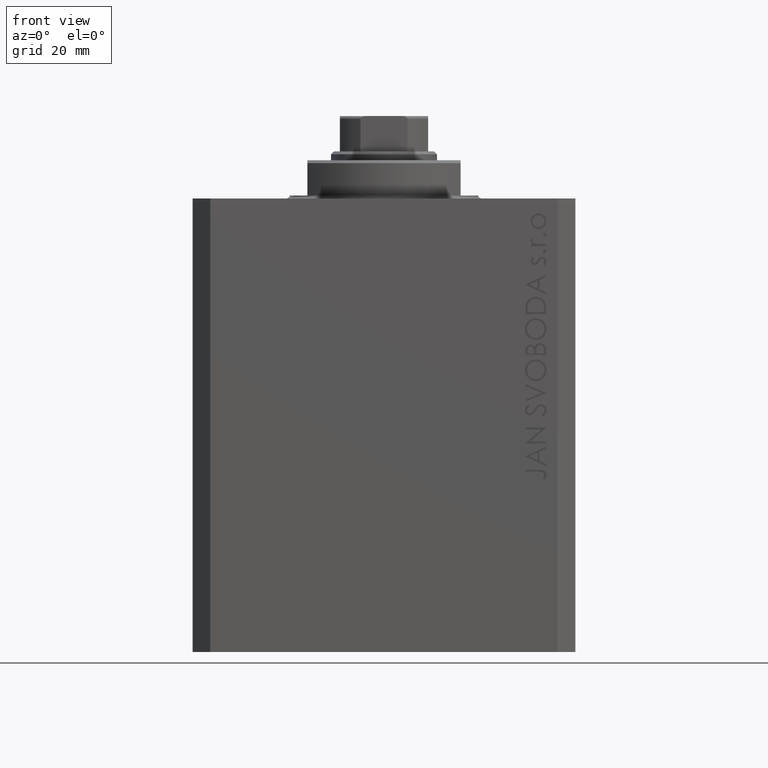
[diagram: clean part render]
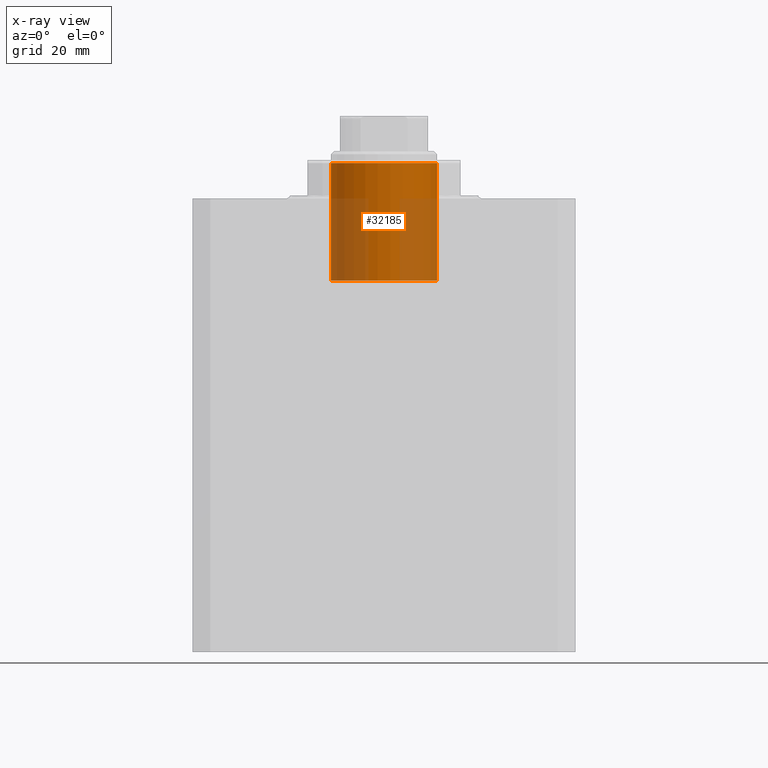
[diagram: x-ray — body ghosted, one internal face saturated and labeled with its STEP entity id]
A machine part, front view, then the same camera in x-ray: the body is ghosted and one INTERNAL B-rep face — a face not visible from any outside direction — is saturated and labeled: STEP entity #32185.
In plain terms, the highlighted cylindrical surface (partial cylindrical patch) has radius 9 mm, axis along (0, -0, 1).
Its self-contained STEP definition (entity closure, byte-faithful):
#677 = AXIS2_PLACEMENT_3D ( 'NONE', #23415, #34451, #4932 ) ;
#1191 = DIRECTION ( 'NONE',  ( 0.000000000000000000, 0.000000000000000000, -1.000000000000000000 ) ) ;
#1684 = CYLINDRICAL_SURFACE ( 'NONE', #7118, 9.000000000000000000 ) ;
#3570 = ORIENTED_EDGE ( 'NONE', *, *, #31695, .T. ) ;
#3583 = EDGE_LOOP ( 'NONE', ( #42538, #3570, #30883, #42261 ) ) ;
#3878 = EDGE_CURVE ( 'NONE', #10261, #14489, #27518, .T. ) ;
#4932 = DIRECTION ( 'NONE',  ( -1.000000000000000000, 0.000000000000000000, 0.000000000000000000 ) ) ;
#7012 = DIRECTION ( 'NONE',  ( -0.000000000000000000, -0.000000000000000000, -1.000000000000000000 ) ) ;
#7118 = AXIS2_PLACEMENT_3D ( 'NONE', #42703, #38870, #31198 ) ;
#7186 = EDGE_CURVE ( 'NONE', #9735, #23212, #28922, .T. ) ;
#9735 = VERTEX_POINT ( 'NONE', #17208 ) ;
#10261 = VERTEX_POINT ( 'NONE', #45424 ) ;
#12405 = CARTESIAN_POINT ( 'NONE',  ( -9.000000000000000000, 0.000000000000000000, 14.00000000000000178 ) ) ;
#14489 = VERTEX_POINT ( 'NONE', #41833 ) ;
#15667 = DIRECTION ( 'NONE',  ( -0.000000000000000000, -0.000000000000000000, -1.000000000000000000 ) ) ;
#15826 = DIRECTION ( 'NONE',  ( -1.000000000000000000, 0.000000000000000000, 0.000000000000000000 ) ) ;
#17208 = CARTESIAN_POINT ( 'NONE',  ( 9.000000000000000000, 1.102182119232617714E-15, 14.00000000000000178 ) ) ;
#23212 = VERTEX_POINT ( 'NONE', #12405 ) ;
#23415 = CARTESIAN_POINT ( 'NONE',  ( 0.000000000000000000, 0.000000000000000000, -5.999999999999987566 ) ) ;
#23514 = CARTESIAN_POINT ( 'NONE',  ( 0.000000000000000000, 0.000000000000000000, 14.00000000000000178 ) ) ;
#27518 = CIRCLE ( 'NONE', #677, 9.000000000000000000 ) ;
#28922 = CIRCLE ( 'NONE', #39647, 9.000000000000000000 ) ;
#29602 = LINE ( 'NONE', #34380, #39310 ) ;
#30883 = ORIENTED_EDGE ( 'NONE', *, *, #3878, .T. ) ;
#31198 = DIRECTION ( 'NONE',  ( -1.000000000000000000, 0.000000000000000000, 0.000000000000000000 ) ) ;
#31679 = FACE_OUTER_BOUND ( 'NONE', #3583, .T. ) ;
#31695 = EDGE_CURVE ( 'NONE', #9735, #10261, #29602, .T. ) ;
#32185 = ADVANCED_FACE ( 'NONE', ( #31679 ), #1684, .F. ) ;
#34339 = EDGE_CURVE ( 'NONE', #23212, #14489, #39428, .T. ) ;
#34380 = CARTESIAN_POINT ( 'NONE',  ( 9.000000000000000000, 1.102182119232617714E-15, 14.00000000000000178 ) ) ;
#34451 = DIRECTION ( 'NONE',  ( 0.000000000000000000, 0.000000000000000000, -1.000000000000000000 ) ) ;
#35823 = CARTESIAN_POINT ( 'NONE',  ( -9.000000000000000000, 0.000000000000000000, 14.00000000000000178 ) ) ;
#36972 = VECTOR ( 'NONE', #7012, 1000.000000000000000 ) ;
#38870 = DIRECTION ( 'NONE',  ( -0.000000000000000000, -0.000000000000000000, -1.000000000000000000 ) ) ;
#39310 = VECTOR ( 'NONE', #15667, 1000.000000000000000 ) ;
#39428 = LINE ( 'NONE', #35823, #36972 ) ;
#39647 = AXIS2_PLACEMENT_3D ( 'NONE', #23514, #1191, #15826 ) ;
#41833 = CARTESIAN_POINT ( 'NONE',  ( -9.000000000000000000, 0.000000000000000000, -5.999999999999987566 ) ) ;
#42261 = ORIENTED_EDGE ( 'NONE', *, *, #34339, .F. ) ;
#42538 = ORIENTED_EDGE ( 'NONE', *, *, #7186, .F. ) ;
#42703 = CARTESIAN_POINT ( 'NONE',  ( 0.000000000000000000, 0.000000000000000000, 14.00000000000000178 ) ) ;
#45424 = CARTESIAN_POINT ( 'NONE',  ( 9.000000000000000000, 1.102182119232617714E-15, -5.999999999999987566 ) ) ;